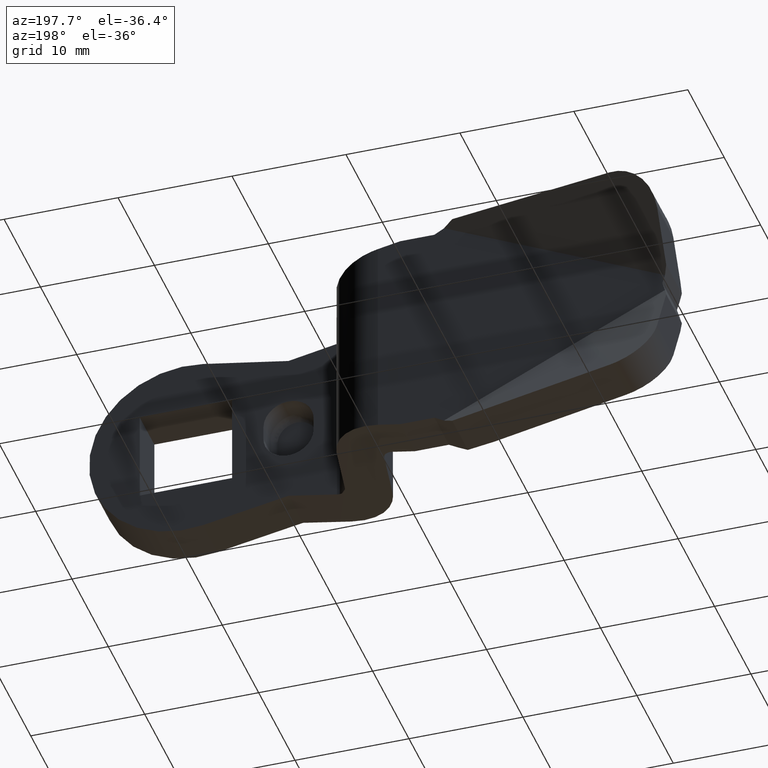
[diagram: clean part render]
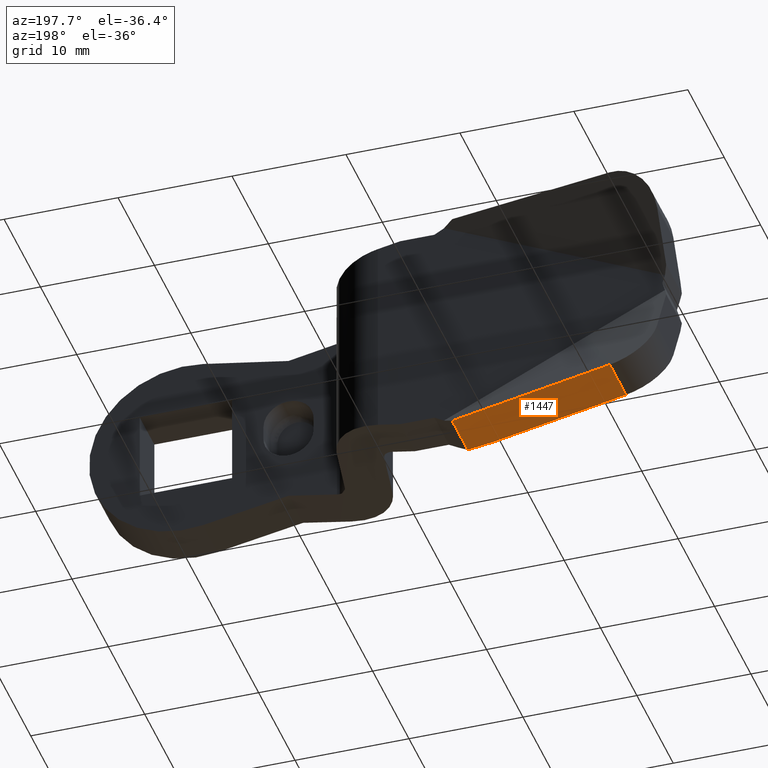
[diagram: same view with one face highlighted and labeled with its STEP entity id]
A machine part, auxiliary view. The second image highlights one B-rep face of the part: STEP entity #1447.
In plain terms, the highlighted face is a freeform B-spline surface patch.
Its self-contained STEP definition (entity closure, byte-faithful):
#1224=CARTESIAN_POINT('',(-29.101330966022299,-3.589033668686995,-10.389891029633100));
#1225=VERTEX_POINT('',#1224);
#1231=CARTESIAN_POINT('',(-26.677422310739399,-3.919693638437140,-10.469013167013200));
#1232=VERTEX_POINT('',#1231);
#1233=CARTESIAN_POINT('',(-26.677422310739399,-3.919693638437140,-10.469013167013200));
#1234=CARTESIAN_POINT('',(-27.942747174460663,-3.816827052938306,-10.427709957224490));
#1235=CARTESIAN_POINT('',(-29.101330966022260,-3.589033668686995,-10.389891029633089));
#1243=(BOUNDED_CURVE()B_SPLINE_CURVE(2,(#1233,#1234,#1235),.UNSPECIFIED.,.F.,.U.)CURVE()GEOMETRIC_REPRESENTATION_ITEM()QUASI_UNIFORM_CURVE()RATIONAL_B_SPLINE_CURVE((1.0,0.991783610842216,1.0))REPRESENTATION_ITEM(''));
#1244=EDGE_CURVE('',#1232,#1225,#1243,.T.);
#1376=CARTESIAN_POINT('',(-41.435250388168953,-1.164016793155834,-9.987282596007720));
#1377=VERTEX_POINT('',#1376);
#1398=CARTESIAN_POINT('',(-41.435250388168953,3.294008147242960,-9.987282596007720));
#1399=VERTEX_POINT('',#1398);
#1413=CARTESIAN_POINT('',(-41.435250388168953,-1.164016793155834,-9.987282596007720));
#1414=CARTESIAN_POINT('',(-41.435250388168953,3.294008147242960,-9.987282596007720));
#1415=QUASI_UNIFORM_CURVE('',1,(#1413,#1414),.UNSPECIFIED.,.F.,.U.);
#1416=EDGE_CURVE('',#1377,#1399,#1415,.T.);
#1421=CARTESIAN_POINT('',(-42.172402763745581,3.654332672890269,-9.963220191096822));
#1422=CARTESIAN_POINT('',(-25.940268483764861,3.654332672890269,-10.493075619301189));
#1423=CARTESIAN_POINT('',(-42.172402763745581,-4.280018228579968,-9.963220191096822));
#1424=CARTESIAN_POINT('',(-25.940268483764861,-4.280018228579968,-10.493075619301189));
#1425=B_SPLINE_SURFACE_WITH_KNOTS('',1,1,((#1421,#1423),(#1422,#1424)),.UNSPECIFIED.,.F.,.F.,.U.,(2,2),(2,2),(0.0,16.240779847597299),(0.0,7.934350901470238),.UNSPECIFIED.);
#1426=CARTESIAN_POINT('',(-26.677422310747101,0.392417751789653,-10.469013167017639));
#1427=VERTEX_POINT('',#1426);
#1428=CARTESIAN_POINT('',(-26.677422310739399,-3.919693638437140,-10.469013167013200));
#1429=CARTESIAN_POINT('',(-26.677422310747101,0.392417751789653,-10.469013167017639));
#1430=QUASI_UNIFORM_CURVE('',1,(#1428,#1429),.UNSPECIFIED.,.F.,.U.);
#1431=EDGE_CURVE('',#1232,#1427,#1430,.T.);
#1432=ORIENTED_EDGE('',*,*,#1431,.F.);
#1433=ORIENTED_EDGE('',*,*,#1244,.T.);
#1434=CARTESIAN_POINT('',(-41.435250388168953,-1.164016793155834,-9.987282596007720));
#1435=CARTESIAN_POINT('',(-29.101330966022299,-3.589033668686995,-10.389891029633100));
#1436=QUASI_UNIFORM_CURVE('',1,(#1434,#1435),.UNSPECIFIED.,.F.,.U.);
#1437=EDGE_CURVE('',#1377,#1225,#1436,.T.);
#1438=ORIENTED_EDGE('',*,*,#1437,.F.);
#1439=ORIENTED_EDGE('',*,*,#1416,.T.);
#1440=CARTESIAN_POINT('',(-41.435250388168953,3.294008147242960,-9.987282596007720));
#1441=CARTESIAN_POINT('',(-26.677422310747101,0.392417751789653,-10.469013167017639));
#1442=QUASI_UNIFORM_CURVE('',1,(#1440,#1441),.UNSPECIFIED.,.F.,.U.);
#1443=EDGE_CURVE('',#1399,#1427,#1442,.T.);
#1444=ORIENTED_EDGE('',*,*,#1443,.T.);
#1445=EDGE_LOOP('',(#1432,#1433,#1438,#1439,#1444));
#1446=FACE_OUTER_BOUND('',#1445,.T.);
#1447=ADVANCED_FACE('',(#1446),#1425,.T.);